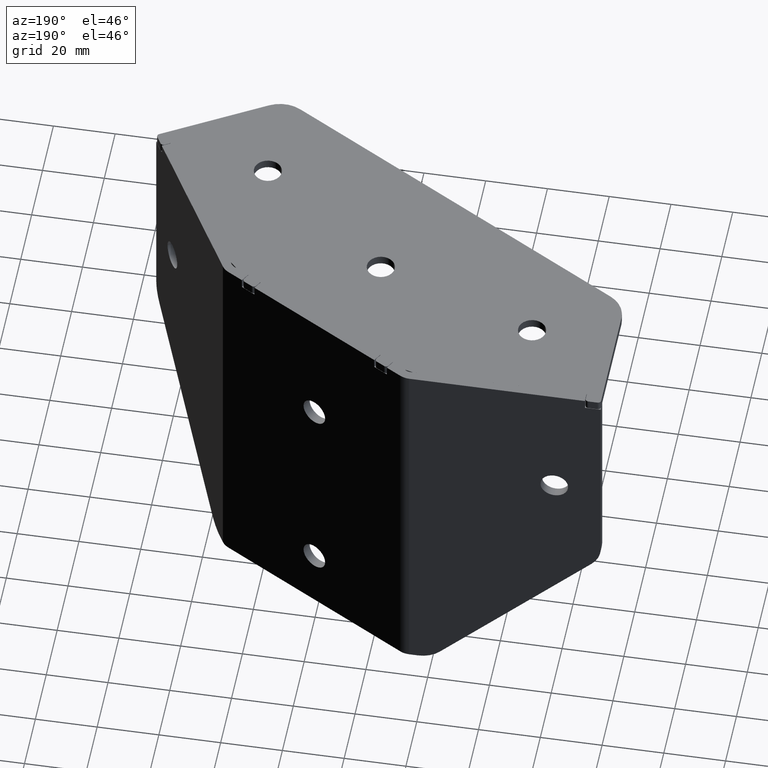
[diagram: clean part render]
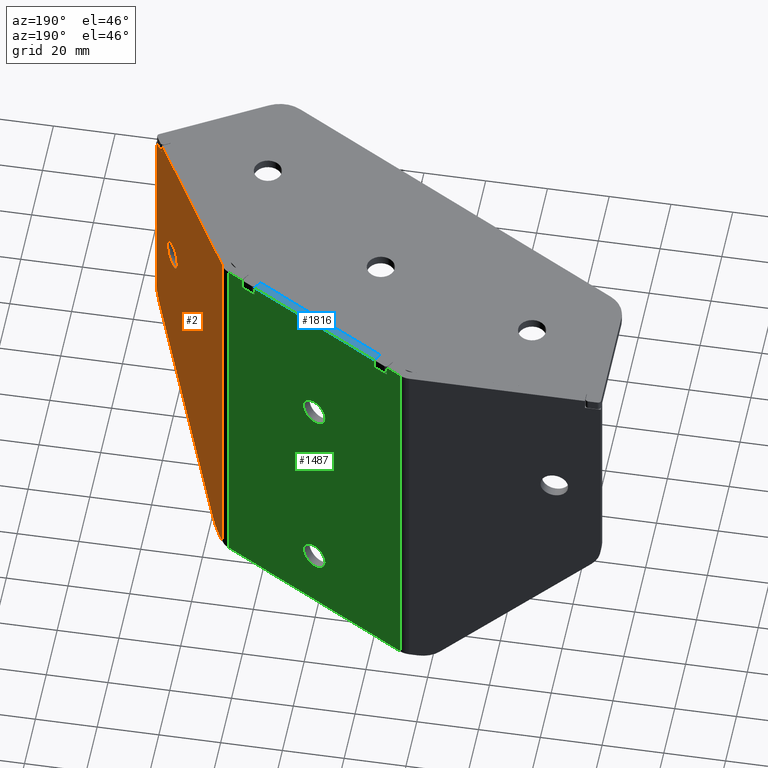
[diagram: same view with three faces highlighted in distinct colors, each labeled with its STEP entity id]
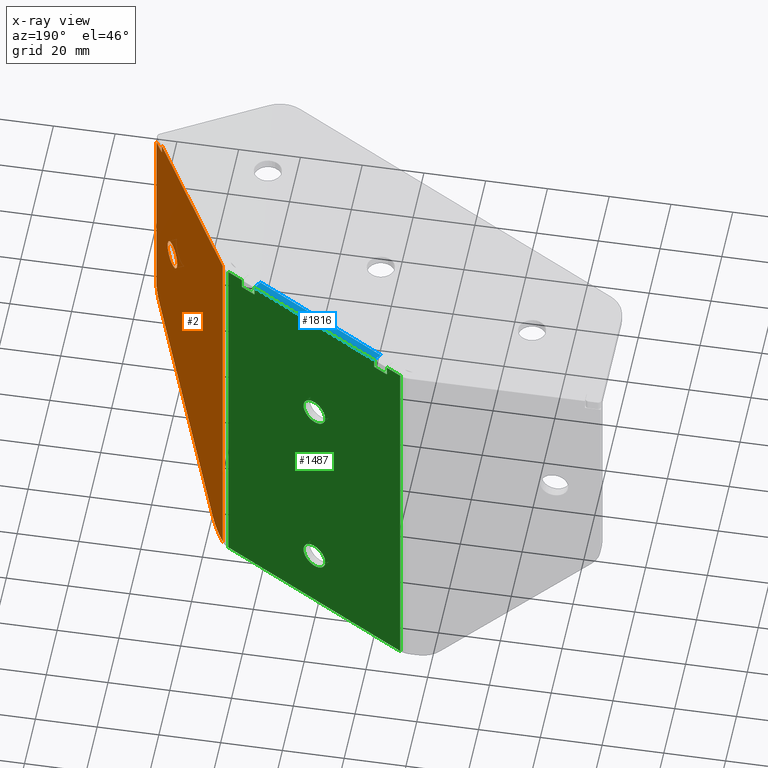
[diagram: x-ray of the same camera — body ghosted, the three highlighted faces saturated]
A machine part, auxiliary view with three faces highlighted in distinct colors.
The next image is the same camera in x-ray (body ghosted, the three faces saturated) — at least one of them is partly hidden behind the body in this view.
Their STEP definitions:

[orange] entity #2 — the highlighted planar face has unit normal (-0.866, -0.5, 0).
#2 = ADVANCED_FACE ( 'NONE', ( #11, #325 ), #80, .F. ) ;
#11 = FACE_OUTER_BOUND ( 'NONE', #2648, .T. ) ;
#41 = CARTESIAN_POINT ( 'NONE',  ( 659.1165698965362481, 1046.987140149959259, 1136.928932188134240 ) ) ;
#52 = CARTESIAN_POINT ( 'NONE',  ( 671.4241306401276006, 1025.669819665898558, 1161.544053639740696 ) ) ;
#58 = ORIENTED_EDGE ( 'NONE', *, *, #1116, .F. ) ;
#68 = DIRECTION ( 'NONE',  ( 0.3535533910230300725, -0.6123724354476739462, 0.7071067811865481278 ) ) ;
#80 = PLANE ( 'NONE',  #2489 ) ;
#98 = VERTEX_POINT ( 'NONE', #2013 ) ;
#117 = ORIENTED_EDGE ( 'NONE', *, *, #1336, .F. ) ;
#123 = EDGE_CURVE ( 'NONE', #1938, #1609, #1735, .T. ) ;
#129 = DIRECTION ( 'NONE',  ( 0.8660254037843836405, 0.5000000000000952571, -0.000000000000000000 ) ) ;
#179 = EDGE_CURVE ( 'NONE', #2289, #1593, #2026, .T. ) ;
#213 = EDGE_CURVE ( 'NONE', #98, #1100, #1623, .T. ) ;
#253 = ORIENTED_EDGE ( 'NONE', *, *, #123, .F. ) ;
#308 = DIRECTION ( 'NONE',  ( 0.5000000000001023626, -0.8660254037843795327, 0.000000000000000000 ) ) ;
#325 = FACE_BOUND ( 'NONE', #2265, .T. ) ;
#435 = CIRCLE ( 'NONE', #1131, 9.999999999999960920 ) ;
#484 = AXIS2_PLACEMENT_3D ( 'NONE', #1766, #129, #1328 ) ;
#485 = CARTESIAN_POINT ( 'NONE',  ( 682.6461574715469851, 1006.232698988909647, 1133.999999999999545 ) ) ;
#494 = VECTOR ( 'NONE', #618, 1000.000000000000000 ) ;
#496 = CARTESIAN_POINT ( 'NONE',  ( 653.7942394537017208, 1056.205686891617006, 1133.999999999999545 ) ) ;
#535 = CARTESIAN_POINT ( 'NONE',  ( 653.7942394537017208, 1056.205686891617006, 1133.999999999999545 ) ) ;
#588 = LINE ( 'NONE', #52, #1338 ) ;
#604 = VECTOR ( 'NONE', #1655, 1000.000000000000000 ) ;
#612 = DIRECTION ( 'NONE',  ( 0.5000000000000952571, -0.8660254037843836405, 0.000000000000000000 ) ) ;
#618 = DIRECTION ( 'NONE',  ( 0.5000000000000952571, -0.8660254037843836405, 0.000000000000000000 ) ) ;
#633 = EDGE_CURVE ( 'NONE', #98, #860, #2646, .T. ) ;
#635 = ORIENTED_EDGE ( 'NONE', *, *, #2154, .T. ) ;
#671 = VERTEX_POINT ( 'NONE', #2987 ) ;
#724 = EDGE_CURVE ( 'NONE', #860, #1120, #1127, .T. ) ;
#760 = DIRECTION ( 'NONE',  ( 0.5000000000000971445, -0.8660254037843826413, 0.000000000000000000 ) ) ;
#817 = CARTESIAN_POINT ( 'NONE',  ( 655.5810359906026861, 1053.110864506916869, 1143.999999999999545 ) ) ;
#827 = CARTESIAN_POINT ( 'NONE',  ( 654.1961632423484616, 1055.509534468910488, 1260.499999999999545 ) ) ;
#847 = DIRECTION ( 'NONE',  ( 0.5000000000000952571, -0.8660254037843836405, 0.000000000000000000 ) ) ;
#860 = VERTEX_POINT ( 'NONE', #1869 ) ;
#919 = CARTESIAN_POINT ( 'NONE',  ( 685.1961574715475081, 1001.815969429609368, 1133.999999999999545 ) ) ;
#979 = AXIS2_PLACEMENT_3D ( 'NONE', #817, #1967, #308 ) ;
#1023 = ORIENTED_EDGE ( 'NONE', *, *, #1968, .T. ) ;
#1041 = DIRECTION ( 'NONE',  ( -0.8660254037843836405, -0.5000000000000952571, 0.000000000000000000 ) ) ;
#1074 = CARTESIAN_POINT ( 'NONE',  ( 675.4461574422132344, 1018.703464854209983, 1220.000000000000000 ) ) ;
#1100 = VERTEX_POINT ( 'NONE', #827 ) ;
#1116 = EDGE_CURVE ( 'NONE', #1120, #2840, #588, .T. ) ;
#1120 = VERTEX_POINT ( 'NONE', #41 ) ;
#1127 = CIRCLE ( 'NONE', #979, 9.999999999999960920 ) ;
#1131 = AXIS2_PLACEMENT_3D ( 'NONE', #1915, #2897, #2690 ) ;
#1135 = EDGE_CURVE ( 'NONE', #1609, #1938, #3091, .T. ) ;
#1185 = ORIENTED_EDGE ( 'NONE', *, *, #1811, .F. ) ;
#1328 = DIRECTION ( 'NONE',  ( 0.5000000000000971445, -0.8660254037843826413, 0.000000000000000000 ) ) ;
#1336 = EDGE_CURVE ( 'NONE', #2840, #2702, #435, .T. ) ;
#1338 = VECTOR ( 'NONE', #68, 1000.000000000000114 ) ;
#1438 = DIRECTION ( 'NONE',  ( -0.000000000000000000, -0.000000000000000000, -1.000000000000000000 ) ) ;
#1521 = CARTESIAN_POINT ( 'NONE',  ( 685.1961574715475081, 1001.815969429609368, 1193.230242961877821 ) ) ;
#1593 = VERTEX_POINT ( 'NONE', #2721 ) ;
#1609 = VERTEX_POINT ( 'NONE', #2873 ) ;
#1623 = LINE ( 'NONE', #3071, #604 ) ;
#1655 = DIRECTION ( 'NONE',  ( 0.000000000000000000, 0.000000000000000000, 1.000000000000000000 ) ) ;
#1735 = CIRCLE ( 'NONE', #484, 4.500000000000184741 ) ;
#1766 = CARTESIAN_POINT ( 'NONE',  ( 677.6961574422138028, 1014.806350537180037, 1220.000000000000000 ) ) ;
#1811 = EDGE_CURVE ( 'NONE', #2702, #1593, #2160, .T. ) ;
#1828 = ORIENTED_EDGE ( 'NONE', *, *, #213, .T. ) ;
#1838 = VECTOR ( 'NONE', #612, 1000.000000000000000 ) ;
#1869 = CARTESIAN_POINT ( 'NONE',  ( 655.5810359906027998, 1053.110864506916869, 1133.999999999999545 ) ) ;
#1915 = CARTESIAN_POINT ( 'NONE',  ( 680.1961574715465986, 1010.476223467453110, 1193.230242961877821 ) ) ;
#1938 = VERTEX_POINT ( 'NONE', #1074 ) ;
#1967 = DIRECTION ( 'NONE',  ( -0.8660254037843836405, -0.5000000000000952571, 0.000000000000000000 ) ) ;
#1968 = EDGE_CURVE ( 'NONE', #1100, #671, #2857, .T. ) ;
#2013 = CARTESIAN_POINT ( 'NONE',  ( 654.1961632423484616, 1055.509534468910488, 1133.999999999999545 ) ) ;
#2026 = LINE ( 'NONE', #2999, #2348 ) ;
#2029 = CARTESIAN_POINT ( 'NONE',  ( 653.7942394537017208, 1056.205686891617006, 1260.499999999999545 ) ) ;
#2042 = VECTOR ( 'NONE', #2116, 1000.000000000000000 ) ;
#2116 = DIRECTION ( 'NONE',  ( 0.000000000000000000, 0.000000000000000000, 1.000000000000000000 ) ) ;
#2154 = EDGE_CURVE ( 'NONE', #671, #2289, #2636, .T. ) ;
#2160 = LINE ( 'NONE', #919, #2042 ) ;
#2252 = VECTOR ( 'NONE', #1438, 1000.000000000000000 ) ;
#2265 = EDGE_LOOP ( 'NONE', ( #2832, #253 ) ) ;
#2289 = VERTEX_POINT ( 'NONE', #2982 ) ;
#2348 = VECTOR ( 'NONE', #847, 1000.000000000000000 ) ;
#2404 = ORIENTED_EDGE ( 'NONE', *, *, #724, .F. ) ;
#2489 = AXIS2_PLACEMENT_3D ( 'NONE', #535, #1041, #2652 ) ;
#2525 = ORIENTED_EDGE ( 'NONE', *, *, #179, .T. ) ;
#2636 = LINE ( 'NONE', #485, #2252 ) ;
#2646 = LINE ( 'NONE', #496, #1838 ) ;
#2648 = EDGE_LOOP ( 'NONE', ( #2525, #1185, #117, #58, #2404, #2695, #1828, #1023, #635 ) ) ;
#2652 = DIRECTION ( 'NONE',  ( 0.5000000000000952571, -0.8660254037843836405, 0.000000000000000000 ) ) ;
#2690 = DIRECTION ( 'NONE',  ( 0.5000000000001023626, -0.8660254037843795327, 0.000000000000000000 ) ) ;
#2693 = CARTESIAN_POINT ( 'NONE',  ( 677.6961574422138028, 1014.806350537180037, 1220.000000000000000 ) ) ;
#2695 = ORIENTED_EDGE ( 'NONE', *, *, #633, .F. ) ;
#2702 = VERTEX_POINT ( 'NONE', #1521 ) ;
#2721 = CARTESIAN_POINT ( 'NONE',  ( 685.1961574715475081, 1001.815969429609368, 1257.399999999999636 ) ) ;
#2816 = CARTESIAN_POINT ( 'NONE',  ( 683.7316913774800469, 1004.352499110495501, 1186.159175150012288 ) ) ;
#2832 = ORIENTED_EDGE ( 'NONE', *, *, #1135, .F. ) ;
#2840 = VERTEX_POINT ( 'NONE', #2816 ) ;
#2854 = AXIS2_PLACEMENT_3D ( 'NONE', #2693, #2921, #760 ) ;
#2857 = LINE ( 'NONE', #2029, #494 ) ;
#2873 = CARTESIAN_POINT ( 'NONE',  ( 679.9461574422143713, 1010.909236220150206, 1220.000000000000000 ) ) ;
#2897 = DIRECTION ( 'NONE',  ( -0.8660254037843836405, -0.5000000000000952571, 0.000000000000000000 ) ) ;
#2921 = DIRECTION ( 'NONE',  ( 0.8660254037843836405, 0.5000000000000952571, -0.000000000000000000 ) ) ;
#2982 = CARTESIAN_POINT ( 'NONE',  ( 682.6461574715469851, 1006.232698988909647, 1257.399999999999636 ) ) ;
#2987 = CARTESIAN_POINT ( 'NONE',  ( 682.6461574715469851, 1006.232698988909647, 1260.499999999999545 ) ) ;
#2999 = CARTESIAN_POINT ( 'NONE',  ( 653.7942394537017208, 1056.205686891617006, 1257.399999999999636 ) ) ;
#3071 = CARTESIAN_POINT ( 'NONE',  ( 654.1961632423485753, 1055.509534468910715, 1133.999999999999545 ) ) ;
#3091 = CIRCLE ( 'NONE', #2854, 4.500000000000184741 ) ;

[blue] entity #1816 — the highlighted planar face has unit normal (0, 0, -1).
#35 = CARTESIAN_POINT ( 'NONE',  ( 599.3955558221427964, 1088.076883144996827, 1260.499999999999545 ) ) ;
#380 = EDGE_CURVE ( 'NONE', #2024, #779, #1762, .T. ) ;
#531 = VERTEX_POINT ( 'NONE', #2003 ) ;
#555 = EDGE_CURVE ( 'NONE', #885, #531, #2706, .T. ) ;
#651 = VECTOR ( 'NONE', #2457, 999.9999999999998863 ) ;
#763 = ORIENTED_EDGE ( 'NONE', *, *, #555, .T. ) ;
#779 = VERTEX_POINT ( 'NONE', #2433 ) ;
#789 = DIRECTION ( 'NONE',  ( 0.8660254037844367092, -0.5000000000000034417, 0.000000000000000000 ) ) ;
#885 = VERTEX_POINT ( 'NONE', #1125 ) ;
#1019 = ORIENTED_EDGE ( 'NONE', *, *, #2515, .T. ) ;
#1024 = EDGE_CURVE ( 'NONE', #779, #531, #1919, .T. ) ;
#1125 = CARTESIAN_POINT ( 'NONE',  ( 597.8955558221426827, 1085.478806933643455, 1260.499999999999545 ) ) ;
#1453 = DIRECTION ( 'NONE',  ( -0.5000000000000034417, -0.8660254037844367092, 0.000000000000000000 ) ) ;
#1456 = DIRECTION ( 'NONE',  ( 0.000000000000000000, -0.000000000000000000, -1.000000000000000000 ) ) ;
#1637 = CARTESIAN_POINT ( 'NONE',  ( 597.8955558221426827, 1085.478806933643455, 1260.499999999999545 ) ) ;
#1762 = LINE ( 'NONE', #2449, #1998 ) ;
#1816 = ADVANCED_FACE ( 'NONE', ( #2673 ), #1942, .F. ) ;
#1909 = ORIENTED_EDGE ( 'NONE', *, *, #380, .F. ) ;
#1919 = LINE ( 'NONE', #2104, #2488 ) ;
#1942 = PLANE ( 'NONE',  #2860 ) ;
#1998 = VECTOR ( 'NONE', #789, 999.9999999999998863 ) ;
#2003 = CARTESIAN_POINT ( 'NONE',  ( 641.1044434558855301, 1060.532144026917422, 1260.499999999999545 ) ) ;
#2024 = VERTEX_POINT ( 'NONE', #35 ) ;
#2104 = CARTESIAN_POINT ( 'NONE',  ( 641.1044434558855301, 1060.532144026917422, 1260.499999999999545 ) ) ;
#2433 = CARTESIAN_POINT ( 'NONE',  ( 642.6044434558856437, 1063.130220238270795, 1260.499999999999545 ) ) ;
#2449 = CARTESIAN_POINT ( 'NONE',  ( 589.3038360356677003, 1093.903340280304519, 1260.499999999999545 ) ) ;
#2457 = DIRECTION ( 'NONE',  ( 0.8660254037844367092, -0.5000000000000034417, 0.000000000000000000 ) ) ;
#2488 = VECTOR ( 'NONE', #2874, 999.9999999999998863 ) ;
#2499 = EDGE_LOOP ( 'NONE', ( #2594, #1909, #1019, #763 ) ) ;
#2515 = EDGE_CURVE ( 'NONE', #2024, #885, #2670, .T. ) ;
#2594 = ORIENTED_EDGE ( 'NONE', *, *, #1024, .F. ) ;
#2670 = LINE ( 'NONE', #1637, #2720 ) ;
#2673 = FACE_OUTER_BOUND ( 'NONE', #2499, .T. ) ;
#2706 = LINE ( 'NONE', #2755, #651 ) ;
#2720 = VECTOR ( 'NONE', #1453, 999.9999999999998863 ) ;
#2755 = CARTESIAN_POINT ( 'NONE',  ( 587.8038360356677003, 1091.305264068951146, 1260.499999999999545 ) ) ;
#2850 = DIRECTION ( 'NONE',  ( 0.8660254037844367092, -0.5000000000000034417, 0.000000000000000000 ) ) ;
#2860 = AXIS2_PLACEMENT_3D ( 'NONE', #3075, #1456, #2850 ) ;
#2874 = DIRECTION ( 'NONE',  ( -0.5000000000000034417, -0.8660254037844367092, 0.000000000000000000 ) ) ;
#3075 = CARTESIAN_POINT ( 'NONE',  ( 587.8038360356677003, 1091.305264068951146, 1260.499999999999545 ) ) ;

[green] entity #1487 — the highlighted planar face has unit normal (-0.5, -0.866, 0).
#35 = CARTESIAN_POINT ( 'NONE',  ( 599.3955558221427964, 1088.076883144996827, 1260.499999999999545 ) ) ;
#85 = CARTESIAN_POINT ( 'NONE',  ( 589.3038360356677003, 1093.903340280304519, 1257.399999999999636 ) ) ;
#110 = CARTESIAN_POINT ( 'NONE',  ( 647.1077755555647855, 1060.530220238270658, 1260.499999999999545 ) ) ;
#132 = LINE ( 'NONE', #924, #1193 ) ;
#134 = VERTEX_POINT ( 'NONE', #598 ) ;
#144 = EDGE_CURVE ( 'NONE', #2735, #1121, #288, .T. ) ;
#167 = ORIENTED_EDGE ( 'NONE', *, *, #2687, .F. ) ;
#177 = VECTOR ( 'NONE', #2900, 999.9999999999998863 ) ;
#178 = EDGE_LOOP ( 'NONE', ( #610, #606, #2312, #1952, #2257, #2392, #222, #2385, #1678, #2558, #167, #1064 ) ) ;
#222 = ORIENTED_EDGE ( 'NONE', *, *, #1891, .F. ) ;
#230 = CARTESIAN_POINT ( 'NONE',  ( 589.9999884583741050, 1093.501416491657892, 1133.999999999999545 ) ) ;
#234 = DIRECTION ( 'NONE',  ( -0.5000000000000034417, -0.8660254037844367092, 0.000000000000000000 ) ) ;
#259 = DIRECTION ( 'NONE',  ( 0.8660254037844377084, -0.5000000000000017764, 0.000000000000000000 ) ) ;
#279 = EDGE_CURVE ( 'NONE', #2616, #779, #928, .T. ) ;
#288 = CIRCLE ( 'NONE', #2034, 4.500000000000154543 ) ;
#342 = DIRECTION ( 'NONE',  ( -0.8660254037844367092, 0.5000000000000034417, -0.000000000000000000 ) ) ;
#380 = EDGE_CURVE ( 'NONE', #2024, #779, #1762, .T. ) ;
#394 = EDGE_CURVE ( 'NONE', #742, #134, #2464, .T. ) ;
#425 = CARTESIAN_POINT ( 'NONE',  ( 642.6044434558856437, 1063.130220238270795, 1133.999999999999545 ) ) ;
#428 = CARTESIAN_POINT ( 'NONE',  ( 652.0000108196421706, 1057.705686891616551, 1260.499999999999545 ) ) ;
#449 = CARTESIAN_POINT ( 'NONE',  ( 594.8922237224636547, 1090.676883144996964, 1133.999999999999545 ) ) ;
#469 = CARTESIAN_POINT ( 'NONE',  ( 594.8922237224636547, 1090.676883144996964, 1257.399999999999636 ) ) ;
#475 = ORIENTED_EDGE ( 'NONE', *, *, #144, .T. ) ;
#532 = FACE_OUTER_BOUND ( 'NONE', #178, .T. ) ;
#538 = CARTESIAN_POINT ( 'NONE',  ( 589.3038360356677003, 1093.903340280304519, 1260.499999999999545 ) ) ;
#554 = LINE ( 'NONE', #85, #796 ) ;
#565 = DIRECTION ( 'NONE',  ( 0.000000000000000000, 0.000000000000000000, 1.000000000000000000 ) ) ;
#598 = CARTESIAN_POINT ( 'NONE',  ( 594.8922237224636547, 1090.676883144996964, 1260.499999999999545 ) ) ;
#606 = ORIENTED_EDGE ( 'NONE', *, *, #2711, .F. ) ;
#610 = ORIENTED_EDGE ( 'NONE', *, *, #2234, .T. ) ;
#621 = VERTEX_POINT ( 'NONE', #2473 ) ;
#655 = VECTOR ( 'NONE', #2631, 1000.000000000000000 ) ;
#678 = LINE ( 'NONE', #230, #2954 ) ;
#742 = VERTEX_POINT ( 'NONE', #2738 ) ;
#779 = VERTEX_POINT ( 'NONE', #2433 ) ;
#789 = DIRECTION ( 'NONE',  ( 0.8660254037844367092, -0.5000000000000034417, 0.000000000000000000 ) ) ;
#796 = VECTOR ( 'NONE', #1754, 999.9999999999998863 ) ;
#819 = LINE ( 'NONE', #2740, #1394 ) ;
#826 = DIRECTION ( 'NONE',  ( -0.5000000000000033307, -0.8660254037844367092, 0.000000000000000000 ) ) ;
#911 = VERTEX_POINT ( 'NONE', #2163 ) ;
#922 = EDGE_CURVE ( 'NONE', #1495, #621, #1933, .T. ) ;
#924 = CARTESIAN_POINT ( 'NONE',  ( 599.3955558221427964, 1088.076883144996827, 1133.999999999999545 ) ) ;
#926 = EDGE_CURVE ( 'NONE', #1608, #2679, #2902, .T. ) ;
#928 = LINE ( 'NONE', #425, #2764 ) ;
#943 = DIRECTION ( 'NONE',  ( -0.000000000000000000, -0.000000000000000000, -1.000000000000000000 ) ) ;
#976 = CARTESIAN_POINT ( 'NONE',  ( 642.6044434558856437, 1063.130220238270795, 1257.399999999999636 ) ) ;
#1007 = EDGE_CURVE ( 'NONE', #1495, #742, #678, .T. ) ;
#1021 = FACE_BOUND ( 'NONE', #1050, .T. ) ;
#1050 = EDGE_LOOP ( 'NONE', ( #1126, #2284 ) ) ;
#1059 = CARTESIAN_POINT ( 'NONE',  ( 589.3038360356677003, 1093.903340280304519, 1257.399999999999636 ) ) ;
#1064 = ORIENTED_EDGE ( 'NONE', *, *, #2543, .F. ) ;
#1066 = CARTESIAN_POINT ( 'NONE',  ( 617.1028856755896186, 1077.853551487479535, 1220.000000000000000 ) ) ;
#1075 = LINE ( 'NONE', #538, #2143 ) ;
#1121 = VERTEX_POINT ( 'NONE', #1066 ) ;
#1126 = ORIENTED_EDGE ( 'NONE', *, *, #2529, .T. ) ;
#1193 = VECTOR ( 'NONE', #943, 1000.000000000000000 ) ;
#1219 = CARTESIAN_POINT ( 'NONE',  ( 620.9999999926199052, 1075.603551487479308, 1153.999999999999545 ) ) ;
#1252 = LINE ( 'NONE', #1059, #1446 ) ;
#1292 = AXIS2_PLACEMENT_3D ( 'NONE', #2216, #234, #2952 ) ;
#1303 = DIRECTION ( 'NONE',  ( 0.8660254037844367092, -0.5000000000000034417, 0.000000000000000000 ) ) ;
#1317 = EDGE_LOOP ( 'NONE', ( #475, #1635 ) ) ;
#1341 = CIRCLE ( 'NONE', #1792, 4.500000000000154543 ) ;
#1390 = VECTOR ( 'NONE', #2498, 999.9999999999998863 ) ;
#1394 = VECTOR ( 'NONE', #565, 1000.000000000000000 ) ;
#1412 = LINE ( 'NONE', #3084, #2975 ) ;
#1424 = CARTESIAN_POINT ( 'NONE',  ( 620.9999999926199052, 1075.603551487479308, 1153.999999999999545 ) ) ;
#1446 = VECTOR ( 'NONE', #342, 999.9999999999998863 ) ;
#1447 = PLANE ( 'NONE',  #1292 ) ;
#1487 = ADVANCED_FACE ( 'NONE', ( #2432, #1021, #532 ), #1447, .F. ) ;
#1495 = VERTEX_POINT ( 'NONE', #1727 ) ;
#1541 = DIRECTION ( 'NONE',  ( 0.8660254037844377084, -0.5000000000000017764, 0.000000000000000000 ) ) ;
#1595 = CARTESIAN_POINT ( 'NONE',  ( 647.1077755555647855, 1060.530220238270658, 1257.399999999999636 ) ) ;
#1608 = VERTEX_POINT ( 'NONE', #2640 ) ;
#1634 = DIRECTION ( 'NONE',  ( 0.000000000000000000, 0.000000000000000000, 1.000000000000000000 ) ) ;
#1635 = ORIENTED_EDGE ( 'NONE', *, *, #1739, .T. ) ;
#1647 = DIRECTION ( 'NONE',  ( 0.8660254037844377084, -0.5000000000000017764, 0.000000000000000000 ) ) ;
#1663 = CARTESIAN_POINT ( 'NONE',  ( 589.3038360356677003, 1093.903340280304519, 1133.999999999999545 ) ) ;
#1678 = ORIENTED_EDGE ( 'NONE', *, *, #380, .T. ) ;
#1727 = CARTESIAN_POINT ( 'NONE',  ( 589.9999884583741050, 1093.501416491657892, 1133.999999999999545 ) ) ;
#1739 = EDGE_CURVE ( 'NONE', #1121, #2735, #1341, .T. ) ;
#1754 = DIRECTION ( 'NONE',  ( -0.8660254037844367092, 0.5000000000000034417, -0.000000000000000000 ) ) ;
#1762 = LINE ( 'NONE', #2449, #1998 ) ;
#1765 = CARTESIAN_POINT ( 'NONE',  ( 624.8971143096499645, 1073.353551487479308, 1153.999999999999545 ) ) ;
#1792 = AXIS2_PLACEMENT_3D ( 'NONE', #2984, #826, #1541 ) ;
#1891 = EDGE_CURVE ( 'NONE', #911, #2089, #554, .T. ) ;
#1932 = EDGE_CURVE ( 'NONE', #2024, #911, #132, .T. ) ;
#1933 = LINE ( 'NONE', #1663, #177 ) ;
#1939 = DIRECTION ( 'NONE',  ( -0.5000000000000033307, -0.8660254037844367092, 0.000000000000000000 ) ) ;
#1952 = ORIENTED_EDGE ( 'NONE', *, *, #1007, .T. ) ;
#1964 = CARTESIAN_POINT ( 'NONE',  ( 589.3038360356677003, 1093.903340280304519, 1260.499999999999545 ) ) ;
#1998 = VECTOR ( 'NONE', #789, 999.9999999999998863 ) ;
#2024 = VERTEX_POINT ( 'NONE', #35 ) ;
#2034 = AXIS2_PLACEMENT_3D ( 'NONE', #2784, #2487, #3027 ) ;
#2089 = VERTEX_POINT ( 'NONE', #469 ) ;
#2143 = VECTOR ( 'NONE', #1303, 999.9999999999998863 ) ;
#2163 = CARTESIAN_POINT ( 'NONE',  ( 599.3955558221426827, 1088.076883144996827, 1257.399999999999636 ) ) ;
#2169 = LINE ( 'NONE', #449, #655 ) ;
#2205 = CARTESIAN_POINT ( 'NONE',  ( 624.8971143096497372, 1073.353551487479535, 1220.000000000000000 ) ) ;
#2216 = CARTESIAN_POINT ( 'NONE',  ( 589.3038360356677003, 1093.903340280304519, 1133.999999999999545 ) ) ;
#2234 = EDGE_CURVE ( 'NONE', #3101, #2309, #1075, .T. ) ;
#2257 = ORIENTED_EDGE ( 'NONE', *, *, #394, .T. ) ;
#2284 = ORIENTED_EDGE ( 'NONE', *, *, #926, .T. ) ;
#2309 = VERTEX_POINT ( 'NONE', #428 ) ;
#2312 = ORIENTED_EDGE ( 'NONE', *, *, #922, .F. ) ;
#2359 = DIRECTION ( 'NONE',  ( -0.5000000000000033307, -0.8660254037844367092, 0.000000000000000000 ) ) ;
#2371 = DIRECTION ( 'NONE',  ( 0.000000000000000000, 0.000000000000000000, 1.000000000000000000 ) ) ;
#2385 = ORIENTED_EDGE ( 'NONE', *, *, #1932, .F. ) ;
#2392 = ORIENTED_EDGE ( 'NONE', *, *, #2549, .F. ) ;
#2420 = VERTEX_POINT ( 'NONE', #1595 ) ;
#2421 = DIRECTION ( 'NONE',  ( -0.000000000000000000, -0.000000000000000000, -1.000000000000000000 ) ) ;
#2432 = FACE_BOUND ( 'NONE', #1317, .T. ) ;
#2433 = CARTESIAN_POINT ( 'NONE',  ( 642.6044434558856437, 1063.130220238270795, 1260.499999999999545 ) ) ;
#2449 = CARTESIAN_POINT ( 'NONE',  ( 589.3038360356677003, 1093.903340280304519, 1260.499999999999545 ) ) ;
#2464 = LINE ( 'NONE', #1964, #1390 ) ;
#2473 = CARTESIAN_POINT ( 'NONE',  ( 652.0000108196422843, 1057.705686891616551, 1133.999999999999545 ) ) ;
#2487 = DIRECTION ( 'NONE',  ( -0.5000000000000033307, -0.8660254037844367092, 0.000000000000000000 ) ) ;
#2498 = DIRECTION ( 'NONE',  ( 0.8660254037844367092, -0.5000000000000034417, 0.000000000000000000 ) ) ;
#2529 = EDGE_CURVE ( 'NONE', #2679, #1608, #2658, .T. ) ;
#2543 = EDGE_CURVE ( 'NONE', #3101, #2420, #1412, .T. ) ;
#2549 = EDGE_CURVE ( 'NONE', #2089, #134, #2169, .T. ) ;
#2558 = ORIENTED_EDGE ( 'NONE', *, *, #279, .F. ) ;
#2616 = VERTEX_POINT ( 'NONE', #976 ) ;
#2631 = DIRECTION ( 'NONE',  ( 0.000000000000000000, 0.000000000000000000, 1.000000000000000000 ) ) ;
#2640 = CARTESIAN_POINT ( 'NONE',  ( 617.1028856755898460, 1077.853551487479308, 1153.999999999999545 ) ) ;
#2658 = CIRCLE ( 'NONE', #2815, 4.500000000000154543 ) ;
#2679 = VERTEX_POINT ( 'NONE', #1765 ) ;
#2687 = EDGE_CURVE ( 'NONE', #2420, #2616, #1252, .T. ) ;
#2711 = EDGE_CURVE ( 'NONE', #621, #2309, #819, .T. ) ;
#2735 = VERTEX_POINT ( 'NONE', #2205 ) ;
#2738 = CARTESIAN_POINT ( 'NONE',  ( 589.9999884583741050, 1093.501416491657892, 1260.499999999999545 ) ) ;
#2740 = CARTESIAN_POINT ( 'NONE',  ( 652.0000108196422843, 1057.705686891616551, 1133.999999999999545 ) ) ;
#2754 = AXIS2_PLACEMENT_3D ( 'NONE', #1424, #2359, #1647 ) ;
#2764 = VECTOR ( 'NONE', #1634, 1000.000000000000000 ) ;
#2784 = CARTESIAN_POINT ( 'NONE',  ( 620.9999999926196779, 1075.603551487479535, 1220.000000000000000 ) ) ;
#2815 = AXIS2_PLACEMENT_3D ( 'NONE', #1219, #1939, #259 ) ;
#2900 = DIRECTION ( 'NONE',  ( 0.8660254037844367092, -0.5000000000000034417, 0.000000000000000000 ) ) ;
#2902 = CIRCLE ( 'NONE', #2754, 4.500000000000154543 ) ;
#2952 = DIRECTION ( 'NONE',  ( 0.8660254037844367092, -0.5000000000000034417, 0.000000000000000000 ) ) ;
#2954 = VECTOR ( 'NONE', #2371, 1000.000000000000000 ) ;
#2975 = VECTOR ( 'NONE', #2421, 1000.000000000000000 ) ;
#2984 = CARTESIAN_POINT ( 'NONE',  ( 620.9999999926196779, 1075.603551487479535, 1220.000000000000000 ) ) ;
#3027 = DIRECTION ( 'NONE',  ( 0.8660254037844377084, -0.5000000000000017764, 0.000000000000000000 ) ) ;
#3084 = CARTESIAN_POINT ( 'NONE',  ( 647.1077755555647855, 1060.530220238270658, 1133.999999999999545 ) ) ;
#3101 = VERTEX_POINT ( 'NONE', #110 ) ;